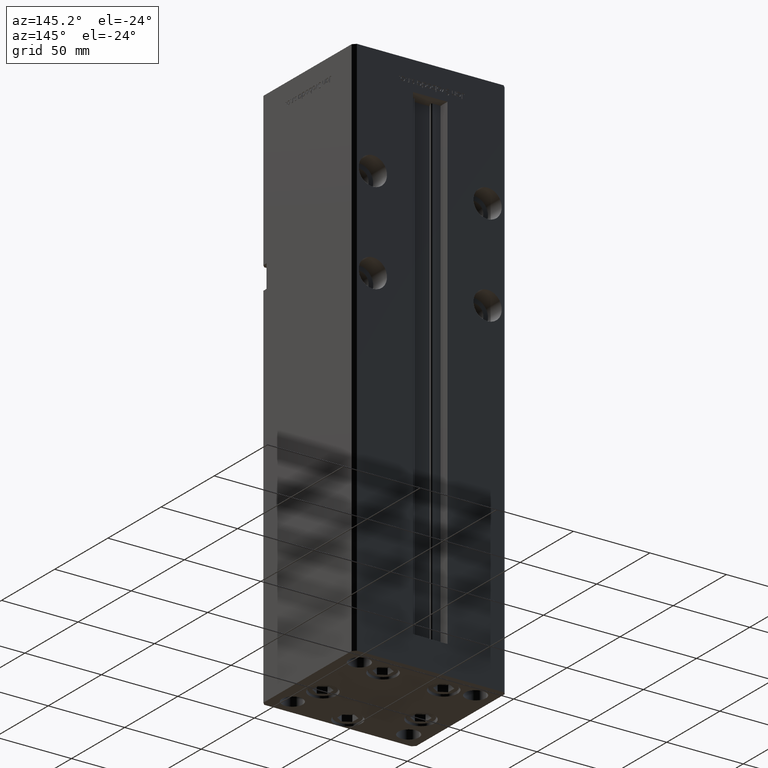
[diagram: clean part render]
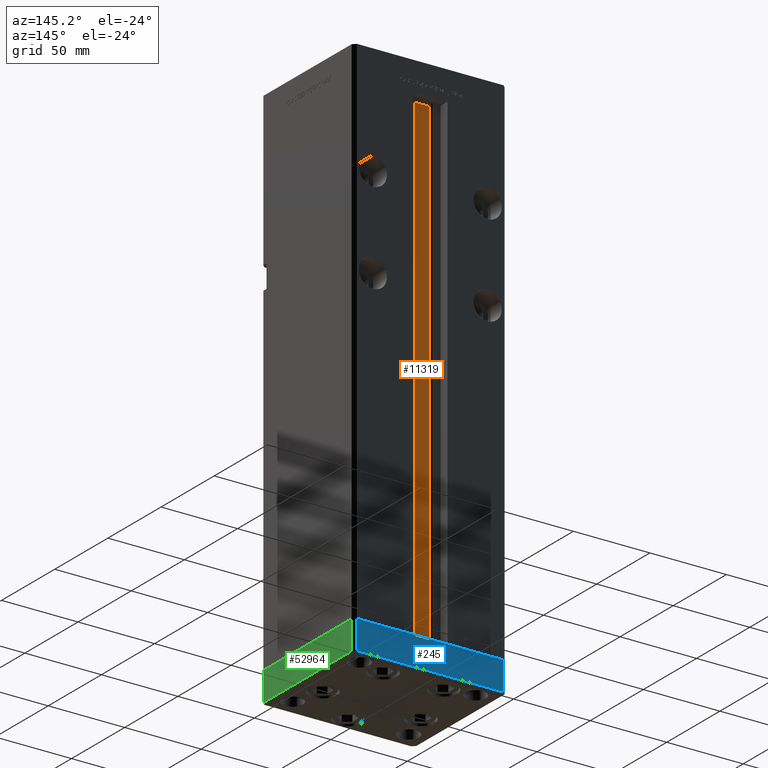
[diagram: same view with three faces highlighted in distinct colors, each labeled with its STEP entity id]
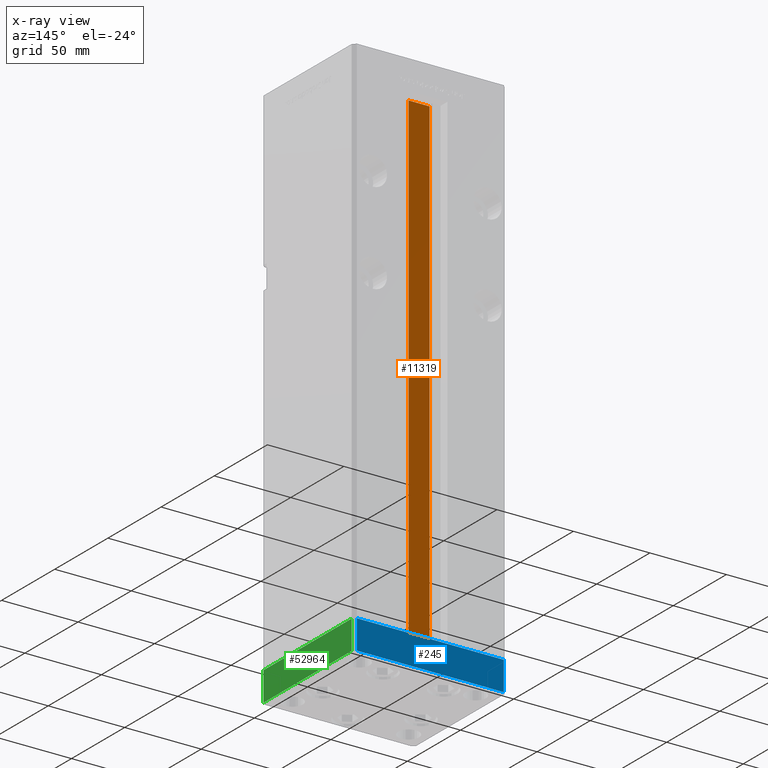
[diagram: x-ray of the same camera — body ghosted, the three highlighted faces saturated]
A machine part, auxiliary view with three faces highlighted in distinct colors.
The next image is the same camera in x-ray (body ghosted, the three faces saturated) — at least one of them is partly hidden behind the body in this view.
Their STEP definitions:

[orange] entity #11319 — the highlighted planar face has unit normal (0, -1, 0).
#1277 = LINE ( 'NONE', #26293, #45564 ) ;
#1468 = EDGE_CURVE ( 'NONE', #3610, #44423, #16455, .T. ) ;
#3610 = VERTEX_POINT ( 'NONE', #37124 ) ;
#7076 = LINE ( 'NONE', #23492, #23524 ) ;
#7790 = ORIENTED_EDGE ( 'NONE', *, *, #41408, .F. ) ;
#10935 = VECTOR ( 'NONE', #40636, 1000.000000000000000 ) ;
#11319 = ADVANCED_FACE ( 'NONE', ( #22659 ), #31265, .F. ) ;
#15411 = DIRECTION ( 'NONE',  ( 0.000000000000000000, -1.000000000000000000, -0.000000000000000000 ) ) ;
#16427 = CARTESIAN_POINT ( 'NONE',  ( -6.876153656360465050, 32.99999999999986500, 0.000000000000000000 ) ) ;
#16455 = LINE ( 'NONE', #29088, #10935 ) ;
#19651 = DIRECTION ( 'NONE',  ( -0.000000000000000000, -0.000000000000000000, 1.000000000000000000 ) ) ;
#22121 = VERTEX_POINT ( 'NONE', #38394 ) ;
#22659 = FACE_OUTER_BOUND ( 'NONE', #27839, .T. ) ;
#23492 = CARTESIAN_POINT ( 'NONE',  ( 6.876153656360465050, 32.99999999999986500, 0.000000000000000000 ) ) ;
#23524 = VECTOR ( 'NONE', #39880, 1000.000000000000000 ) ;
#23930 = VERTEX_POINT ( 'NONE', #50254 ) ;
#24296 = VECTOR ( 'NONE', #19651, 1000.000000000000000 ) ;
#26293 = CARTESIAN_POINT ( 'NONE',  ( 6.876153656360465050, 32.99999999999986500, 0.000000000000000000 ) ) ;
#26968 = CARTESIAN_POINT ( 'NONE',  ( 6.876153656360465050, 32.99999999999986500, 0.000000000000000000 ) ) ;
#27839 = EDGE_LOOP ( 'NONE', ( #7790, #34627, #34366, #34808 ) ) ;
#29088 = CARTESIAN_POINT ( 'NONE',  ( 0.000000000000000000, 32.99999999999986500, 318.5000000000000000 ) ) ;
#30438 = EDGE_CURVE ( 'NONE', #22121, #23930, #1277, .T. ) ;
#31265 = PLANE ( 'NONE',  #36612 ) ;
#31799 = DIRECTION ( 'NONE',  ( 0.000000000000000000, 0.000000000000000000, -1.000000000000000000 ) ) ;
#34366 = ORIENTED_EDGE ( 'NONE', *, *, #38512, .T. ) ;
#34627 = ORIENTED_EDGE ( 'NONE', *, *, #30438, .F. ) ;
#34808 = ORIENTED_EDGE ( 'NONE', *, *, #1468, .F. ) ;
#36054 = LINE ( 'NONE', #16427, #24296 ) ;
#36612 = AXIS2_PLACEMENT_3D ( 'NONE', #26968, #15411, #31799 ) ;
#37124 = CARTESIAN_POINT ( 'NONE',  ( 6.876153656360465050, 32.99999999999986500, 318.5000000000000000 ) ) ;
#38394 = CARTESIAN_POINT ( 'NONE',  ( -6.876153656360465050, 32.99999999999986500, 0.000000000000000000 ) ) ;
#38512 = EDGE_CURVE ( 'NONE', #22121, #44423, #36054, .T. ) ;
#39880 = DIRECTION ( 'NONE',  ( -0.000000000000000000, -0.000000000000000000, 1.000000000000000000 ) ) ;
#40636 = DIRECTION ( 'NONE',  ( -1.000000000000000000, 0.000000000000000000, 0.000000000000000000 ) ) ;
#41408 = EDGE_CURVE ( 'NONE', #23930, #3610, #7076, .T. ) ;
#44423 = VERTEX_POINT ( 'NONE', #52595 ) ;
#45564 = VECTOR ( 'NONE', #47225, 1000.000000000000000 ) ;
#47225 = DIRECTION ( 'NONE',  ( 1.000000000000000000, -0.000000000000000000, -0.000000000000000000 ) ) ;
#50254 = CARTESIAN_POINT ( 'NONE',  ( 6.876153656360465050, 32.99999999999986500, 0.000000000000000000 ) ) ;
#52595 = CARTESIAN_POINT ( 'NONE',  ( -6.876153656360465050, 32.99999999999986500, 318.5000000000000000 ) ) ;

[blue] entity #245 — the highlighted planar face has unit normal (-0, 1, 0).
#245 = ADVANCED_FACE ( 'NONE', ( #48778 ), #36720, .T. ) ;
#272 = VERTEX_POINT ( 'NONE', #25671 ) ;
#378 = EDGE_CURVE ( 'NONE', #25180, #52663, #2227, .T. ) ;
#560 = AXIS2_PLACEMENT_3D ( 'NONE', #53073, #36984, #3633 ) ;
#1060 = CARTESIAN_POINT ( 'NONE',  ( -48.00000000000000711, 43.49999999999996447, -19.00000000000000000 ) ) ;
#2227 = LINE ( 'NONE', #15162, #4858 ) ;
#3633 = DIRECTION ( 'NONE',  ( -1.000000000000000000, -3.614007241618350743E-16, 0.000000000000000000 ) ) ;
#4858 = VECTOR ( 'NONE', #43902, 1000.000000000000000 ) ;
#5695 = ORIENTED_EDGE ( 'NONE', *, *, #6210, .T. ) ;
#6210 = EDGE_CURVE ( 'NONE', #37115, #52663, #50496, .T. ) ;
#6442 = DIRECTION ( 'NONE',  ( -1.000000000000000000, -3.614007241618350743E-16, 0.000000000000000000 ) ) ;
#9929 = CARTESIAN_POINT ( 'NONE',  ( 47.99999999999990763, 43.50000000000000000, -19.00000000000000000 ) ) ;
#15162 = CARTESIAN_POINT ( 'NONE',  ( 47.99999999999990763, 43.50000000000000000, 0.000000000000000000 ) ) ;
#16492 = ORIENTED_EDGE ( 'NONE', *, *, #40568, .T. ) ;
#17497 = LINE ( 'NONE', #9929, #39274 ) ;
#19655 = VECTOR ( 'NONE', #38175, 1000.000000000000000 ) ;
#22994 = ORIENTED_EDGE ( 'NONE', *, *, #51532, .F. ) ;
#25180 = VERTEX_POINT ( 'NONE', #30314 ) ;
#25671 = CARTESIAN_POINT ( 'NONE',  ( 47.99999999999990763, 43.50000000000000000, -19.00000000000000000 ) ) ;
#25955 = ORIENTED_EDGE ( 'NONE', *, *, #378, .F. ) ;
#27844 = CARTESIAN_POINT ( 'NONE',  ( -48.00000000000000711, 43.49999999999996447, 0.000000000000000000 ) ) ;
#30314 = CARTESIAN_POINT ( 'NONE',  ( 47.99999999999990763, 43.50000000000000000, 0.000000000000000000 ) ) ;
#33961 = CARTESIAN_POINT ( 'NONE',  ( 47.99999999999990763, 43.50000000000000000, -19.00000000000000000 ) ) ;
#34104 = EDGE_LOOP ( 'NONE', ( #25955, #22994, #16492, #5695 ) ) ;
#34235 = LINE ( 'NONE', #33961, #38906 ) ;
#34939 = DIRECTION ( 'NONE',  ( 0.000000000000000000, 0.000000000000000000, 1.000000000000000000 ) ) ;
#36720 = PLANE ( 'NONE',  #560 ) ;
#36984 = DIRECTION ( 'NONE',  ( -3.614007241618350743E-16, 1.000000000000000000, 0.000000000000000000 ) ) ;
#37115 = VERTEX_POINT ( 'NONE', #45004 ) ;
#38175 = DIRECTION ( 'NONE',  ( 0.000000000000000000, 0.000000000000000000, 1.000000000000000000 ) ) ;
#38906 = VECTOR ( 'NONE', #6442, 1000.000000000000000 ) ;
#39274 = VECTOR ( 'NONE', #34939, 1000.000000000000000 ) ;
#40568 = EDGE_CURVE ( 'NONE', #272, #37115, #34235, .T. ) ;
#43902 = DIRECTION ( 'NONE',  ( -1.000000000000000000, -3.614007241618350743E-16, 0.000000000000000000 ) ) ;
#45004 = CARTESIAN_POINT ( 'NONE',  ( -48.00000000000000711, 43.49999999999996447, -19.00000000000000000 ) ) ;
#48778 = FACE_OUTER_BOUND ( 'NONE', #34104, .T. ) ;
#50496 = LINE ( 'NONE', #1060, #19655 ) ;
#51532 = EDGE_CURVE ( 'NONE', #272, #25180, #17497, .T. ) ;
#52663 = VERTEX_POINT ( 'NONE', #27844 ) ;
#53073 = CARTESIAN_POINT ( 'NONE',  ( 47.99999999999990763, 43.50000000000000000, -19.00000000000000000 ) ) ;

[green] entity #52964 — the highlighted planar face has unit normal (1, 0, 0).
#236 = VERTEX_POINT ( 'NONE', #24356 ) ;
#842 = ORIENTED_EDGE ( 'NONE', *, *, #35356, .F. ) ;
#1040 = EDGE_CURVE ( 'NONE', #29850, #17296, #6562, .T. ) ;
#1086 = DIRECTION ( 'NONE',  ( 8.360113137237628665E-17, -1.000000000000000000, 0.000000000000000000 ) ) ;
#2003 = VERTEX_POINT ( 'NONE', #9216 ) ;
#5386 = DIRECTION ( 'NONE',  ( -1.000000000000000000, -8.360113137237628665E-17, 0.000000000000000000 ) ) ;
#5421 = DIRECTION ( 'NONE',  ( 0.000000000000000000, 0.000000000000000000, 1.000000000000000000 ) ) ;
#6562 = LINE ( 'NONE', #10870, #50348 ) ;
#9216 = CARTESIAN_POINT ( 'NONE',  ( -50.00000000000000000, -41.50000000000000000, -19.00000000000000000 ) ) ;
#9421 = PLANE ( 'NONE',  #52167 ) ;
#10870 = CARTESIAN_POINT ( 'NONE',  ( -50.00000000000000711, 41.49999999999995026, 0.000000000000000000 ) ) ;
#11544 = LINE ( 'NONE', #32240, #14407 ) ;
#14407 = VECTOR ( 'NONE', #44850, 1000.000000000000000 ) ;
#15428 = ORIENTED_EDGE ( 'NONE', *, *, #24206, .T. ) ;
#16556 = EDGE_LOOP ( 'NONE', ( #48593, #842, #43612, #15428 ) ) ;
#17296 = VERTEX_POINT ( 'NONE', #45214 ) ;
#19028 = VECTOR ( 'NONE', #5421, 1000.000000000000000 ) ;
#24206 = EDGE_CURVE ( 'NONE', #2003, #17296, #52401, .T. ) ;
#24356 = CARTESIAN_POINT ( 'NONE',  ( -50.00000000000000711, 41.49999999999995026, -19.00000000000000000 ) ) ;
#25314 = FACE_OUTER_BOUND ( 'NONE', #16556, .T. ) ;
#28254 = CARTESIAN_POINT ( 'NONE',  ( -50.00000000000000000, -41.50000000000000000, -19.00000000000000000 ) ) ;
#29850 = VERTEX_POINT ( 'NONE', #41864 ) ;
#32240 = CARTESIAN_POINT ( 'NONE',  ( -50.00000000000000711, 41.49999999999995026, -19.00000000000000000 ) ) ;
#35356 = EDGE_CURVE ( 'NONE', #236, #29850, #42499, .T. ) ;
#37679 = CARTESIAN_POINT ( 'NONE',  ( -50.00000000000000711, 41.49999999999995026, -19.00000000000000000 ) ) ;
#41131 = VECTOR ( 'NONE', #44606, 1000.000000000000000 ) ;
#41864 = CARTESIAN_POINT ( 'NONE',  ( -50.00000000000000711, 41.49999999999995026, 0.000000000000000000 ) ) ;
#42499 = LINE ( 'NONE', #50565, #19028 ) ;
#43612 = ORIENTED_EDGE ( 'NONE', *, *, #51713, .T. ) ;
#44606 = DIRECTION ( 'NONE',  ( 0.000000000000000000, 0.000000000000000000, 1.000000000000000000 ) ) ;
#44850 = DIRECTION ( 'NONE',  ( 8.360113137237628665E-17, -1.000000000000000000, 0.000000000000000000 ) ) ;
#45214 = CARTESIAN_POINT ( 'NONE',  ( -50.00000000000000000, -41.50000000000000000, 0.000000000000000000 ) ) ;
#48593 = ORIENTED_EDGE ( 'NONE', *, *, #1040, .F. ) ;
#50348 = VECTOR ( 'NONE', #52517, 1000.000000000000000 ) ;
#50565 = CARTESIAN_POINT ( 'NONE',  ( -50.00000000000000711, 41.49999999999995026, -19.00000000000000000 ) ) ;
#51713 = EDGE_CURVE ( 'NONE', #236, #2003, #11544, .T. ) ;
#52167 = AXIS2_PLACEMENT_3D ( 'NONE', #37679, #5386, #1086 ) ;
#52401 = LINE ( 'NONE', #28254, #41131 ) ;
#52517 = DIRECTION ( 'NONE',  ( 8.360113137237628665E-17, -1.000000000000000000, 0.000000000000000000 ) ) ;
#52964 = ADVANCED_FACE ( 'NONE', ( #25314 ), #9421, .T. ) ;